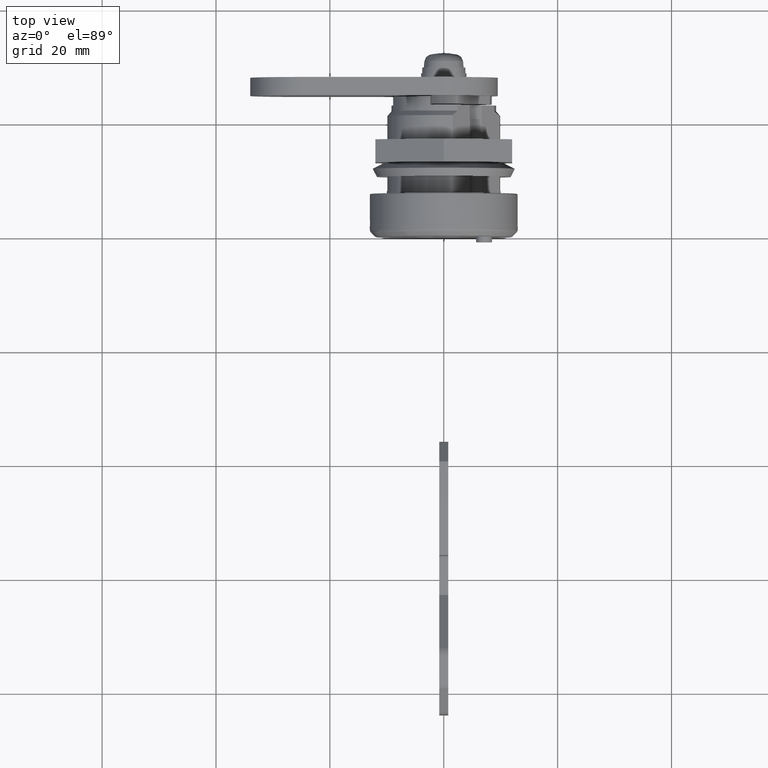
[diagram: clean part render]
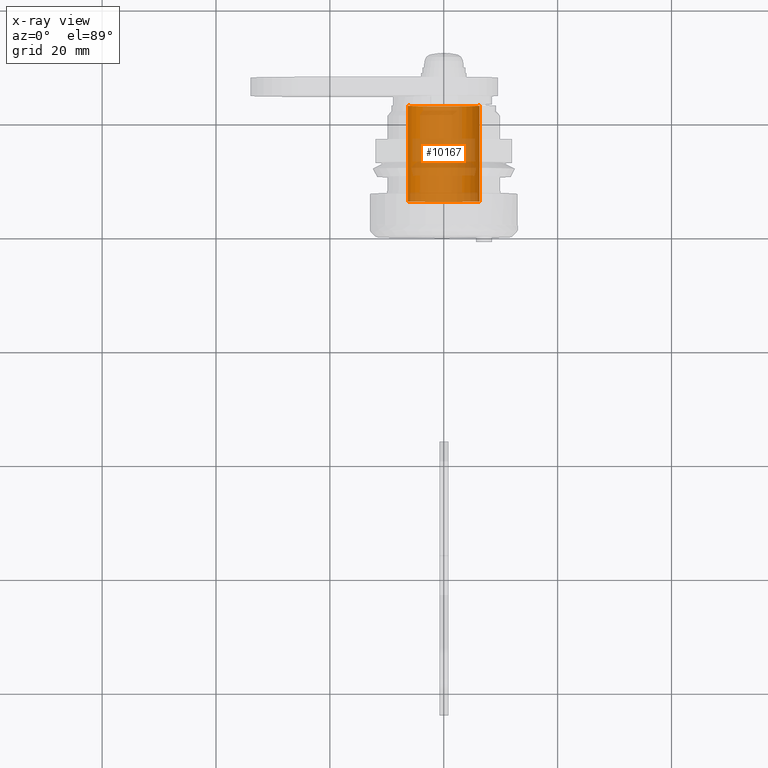
[diagram: x-ray — body ghosted, one internal face saturated and labeled with its STEP entity id]
A machine part, top view, then the same camera in x-ray: the body is ghosted and one INTERNAL B-rep face — a face not visible from any outside direction — is saturated and labeled: STEP entity #10167.
In plain terms, the highlighted face is a freeform B-spline surface patch.
Its self-contained STEP definition (entity closure, byte-faithful):
#10002=CARTESIAN_POINT('',(6.299999999999862,-6.251277132294647,0.782006531462030));
#10003=VERTEX_POINT('',#10002);
#10017=CARTESIAN_POINT('',(6.299999999999860,6.299760115302036,-0.054977173903284));
#10018=VERTEX_POINT('',#10017);
#10034=CARTESIAN_POINT('',(23.100000000000001,6.299760115301801,-0.054977173930194));
#10035=VERTEX_POINT('',#10034);
#10036=CARTESIAN_POINT('',(23.100000000000001,6.299760115301801,-0.054977173930194));
#10037=CARTESIAN_POINT('',(6.299999999999860,6.299760115302036,-0.054977173903284));
#10038=QUASI_UNIFORM_CURVE('',1,(#10036,#10037),.UNSPECIFIED.,.F.,.U.);
#10039=EDGE_CURVE('',#10035,#10018,#10038,.T.);
#10058=CARTESIAN_POINT('',(23.100000000000001,-6.251277147091480,0.782006413177725));
#10059=VERTEX_POINT('',#10058);
#10073=CARTESIAN_POINT('',(23.100000000000001,-6.251277147091480,0.782006413177725));
#10074=CARTESIAN_POINT('',(6.299999999999862,-6.251277132294647,0.782006531462030));
#10075=QUASI_UNIFORM_CURVE('',1,(#10073,#10074),.UNSPECIFIED.,.F.,.U.);
#10076=EDGE_CURVE('',#10059,#10003,#10075,.T.);
#10081=CARTESIAN_POINT('',(23.520000000000010,6.299760115304334,-0.054977173639756));
#10082=CARTESIAN_POINT('',(23.520000000000000,6.244782941664578,-6.354737288944032));
#10083=CARTESIAN_POINT('',(23.520000000000010,-0.054977173639699,-6.299760115304277));
#10084=CARTESIAN_POINT('',(23.520000000000000,-6.354737288943976,-6.244782941664522));
#10085=CARTESIAN_POINT('',(23.520000000000010,-6.299760115304220,0.054977173639756));
#10086=CARTESIAN_POINT('',(23.520000000000003,-6.296575516939678,0.419896001436494));
#10087=CARTESIAN_POINT('',(23.520000000000003,-6.251277147100835,0.782006413102925));
#10088=CARTESIAN_POINT('',(5.869499999999857,6.299760115304334,-0.054977173639756));
#10089=CARTESIAN_POINT('',(5.869499999999857,6.244782941664578,-6.354737288944032));
#10090=CARTESIAN_POINT('',(5.869499999999857,-0.054977173639699,-6.299760115304277));
#10091=CARTESIAN_POINT('',(5.869499999999857,-6.354737288943976,-6.244782941664522));
#10092=CARTESIAN_POINT('',(5.869499999999857,-6.299760115304220,0.054977173639756));
#10093=CARTESIAN_POINT('',(5.869499999999857,-6.296575516939678,0.419896001436494));
#10094=CARTESIAN_POINT('',(5.869499999999857,-6.251277147100835,0.782006413102925));
#10102=(BOUNDED_SURFACE()B_SPLINE_SURFACE(2,1,((#10081,#10088),(#10082,#10089),(#10083,#10090),(#10084,#10091),(#10085,#10092),(#10086,#10093),(#10087,#10094)),.UNSPECIFIED.,.F.,.F.,.U.)B_SPLINE_SURFACE_WITH_KNOTS((3,2,2,3),(2,2),(0.0,10.438181771801990,20.876363543603990,21.711418085348150),(0.0,17.650500000000150),.UNSPECIFIED.)GEOMETRIC_REPRESENTATION_ITEM()RATIONAL_B_SPLINE_SURFACE(((1.0,1.0),(0.707106781186548,0.707106781186548),(1.0,1.0),(0.707106781186548,0.707106781186548),(1.0,1.0),(0.976568542494924,0.976568542494924),(0.956886118190660,0.956886118190660)))REPRESENTATION_ITEM('')SURFACE());
#10103=CARTESIAN_POINT('',(6.299999999999860,5.684342E-014,-6.300000000000000));
#10104=VERTEX_POINT('',#10103);
#10105=CARTESIAN_POINT('',(6.299999999999862,-6.251277132294647,0.782006531462030));
#10106=CARTESIAN_POINT('',(6.299999999999860,-6.299999999999943,0.392521163205658));
#10107=CARTESIAN_POINT('',(6.299999999999860,-6.299999999999943,-1.044162E-029));
#10108=CARTESIAN_POINT('',(6.299999999999861,-6.299999999999942,-6.299999999999998));
#10109=CARTESIAN_POINT('',(6.299999999999860,5.684342E-014,-6.300000000000000));
#10117=(BOUNDED_CURVE()B_SPLINE_CURVE(2,(#10105,#10106,#10107,#10108,#10109),.UNSPECIFIED.,.F.,.U.)B_SPLINE_CURVE_WITH_KNOTS((3,2,3),(0.728526064643154,0.750000000000000,1.0),.UNSPECIFIED.)CURVE()GEOMETRIC_REPRESENTATION_ITEM()RATIONAL_B_SPLINE_CURVE((0.954005417881681,0.974841719810965,1.0,0.707106781186548,1.0))REPRESENTATION_ITEM(''));
#10118=EDGE_CURVE('',#10003,#10104,#10117,.T.);
#10119=ORIENTED_EDGE('',*,*,#10118,.F.);
#10120=ORIENTED_EDGE('',*,*,#10076,.F.);
#10121=CARTESIAN_POINT('',(23.100000000000001,5.684342E-014,-6.300000000000000));
#10122=VERTEX_POINT('',#10121);
#10123=CARTESIAN_POINT('',(23.100000000000001,5.684342E-014,-6.300000000000000));
#10124=CARTESIAN_POINT('',(23.100000000000001,-6.299999999999942,-6.299999999999998));
#10125=CARTESIAN_POINT('',(23.100000000000001,-6.299999999999943,-1.044162E-029));
#10126=CARTESIAN_POINT('',(23.099999999999998,-6.299999999999943,0.392521043536689));
#10127=CARTESIAN_POINT('',(23.100000000000001,-6.251277147091481,0.782006413177725));
#10135=(BOUNDED_CURVE()B_SPLINE_CURVE(2,(#10123,#10124,#10125,#10126,#10127),.UNSPECIFIED.,.F.,.U.)B_SPLINE_CURVE_WITH_KNOTS((3,2,3),(0.0,0.250000000000000,0.271473928974737),.UNSPECIFIED.)CURVE()GEOMETRIC_REPRESENTATION_ITEM()RATIONAL_B_SPLINE_CURVE((1.0,0.707106781186548,1.0,0.974841727288071,0.954005430266887))REPRESENTATION_ITEM(''));
#10136=EDGE_CURVE('',#10122,#10059,#10135,.T.);
#10137=ORIENTED_EDGE('',*,*,#10136,.F.);
#10138=CARTESIAN_POINT('',(23.100000000000001,6.299760115301801,-0.054977173930194));
#10139=CARTESIAN_POINT('',(23.099999999999998,6.245260626172545,-6.299999999999999));
#10140=CARTESIAN_POINT('',(23.100000000000001,5.684342E-014,-6.300000000000000));
#10148=(BOUNDED_CURVE()B_SPLINE_CURVE(2,(#10138,#10139,#10140),.UNSPECIFIED.,.F.,.U.)B_SPLINE_CURVE_WITH_KNOTS((3,3),(0.751539894351229,1.0),.UNSPECIFIED.)CURVE()GEOMETRIC_REPRESENTATION_ITEM()RATIONAL_B_SPLINE_CURVE((0.996414028062819,0.708910879639204,1.0))REPRESENTATION_ITEM(''));
#10149=EDGE_CURVE('',#10035,#10122,#10148,.T.);
#10150=ORIENTED_EDGE('',*,*,#10149,.F.);
#10151=ORIENTED_EDGE('',*,*,#10039,.T.);
#10152=CARTESIAN_POINT('',(6.299999999999860,5.684342E-014,-6.300000000000000));
#10153=CARTESIAN_POINT('',(6.299999999999860,6.245260626225899,-6.299999999999999));
#10154=CARTESIAN_POINT('',(6.299999999999860,6.299760115302036,-0.054977173903284));
#10162=(BOUNDED_CURVE()B_SPLINE_CURVE(2,(#10152,#10153,#10154),.UNSPECIFIED.,.F.,.U.)B_SPLINE_CURVE_WITH_KNOTS((3,3),(0.0,0.248460105650276),.UNSPECIFIED.)CURVE()GEOMETRIC_REPRESENTATION_ITEM()RATIONAL_B_SPLINE_CURVE((1.0,0.708910879637441,0.996414028066301))REPRESENTATION_ITEM(''));
#10163=EDGE_CURVE('',#10104,#10018,#10162,.T.);
#10164=ORIENTED_EDGE('',*,*,#10163,.F.);
#10165=EDGE_LOOP('',(#10119,#10120,#10137,#10150,#10151,#10164));
#10166=FACE_OUTER_BOUND('',#10165,.T.);
#10167=ADVANCED_FACE('',(#10166),#10102,.F.);